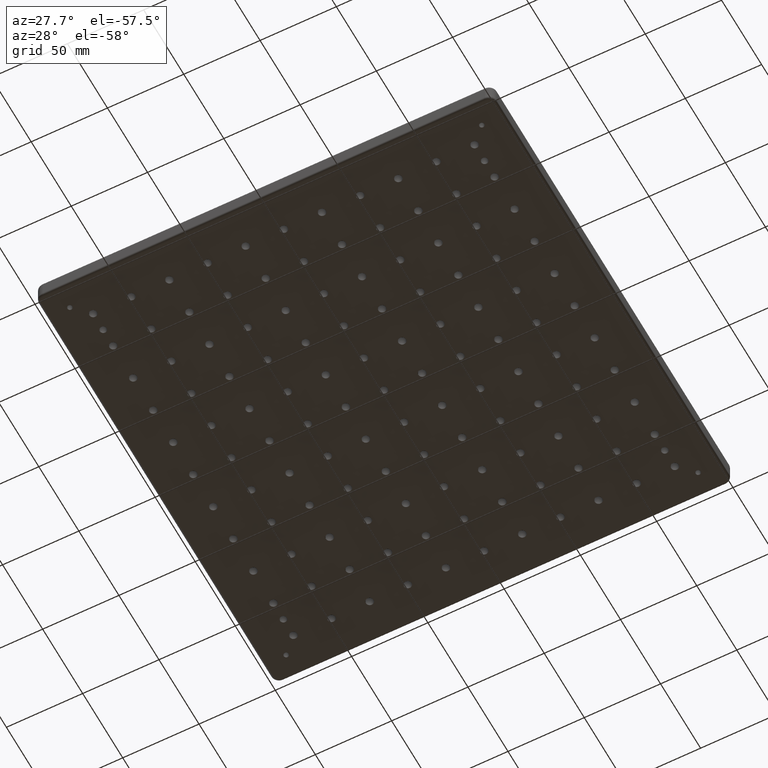
[diagram: clean part render]
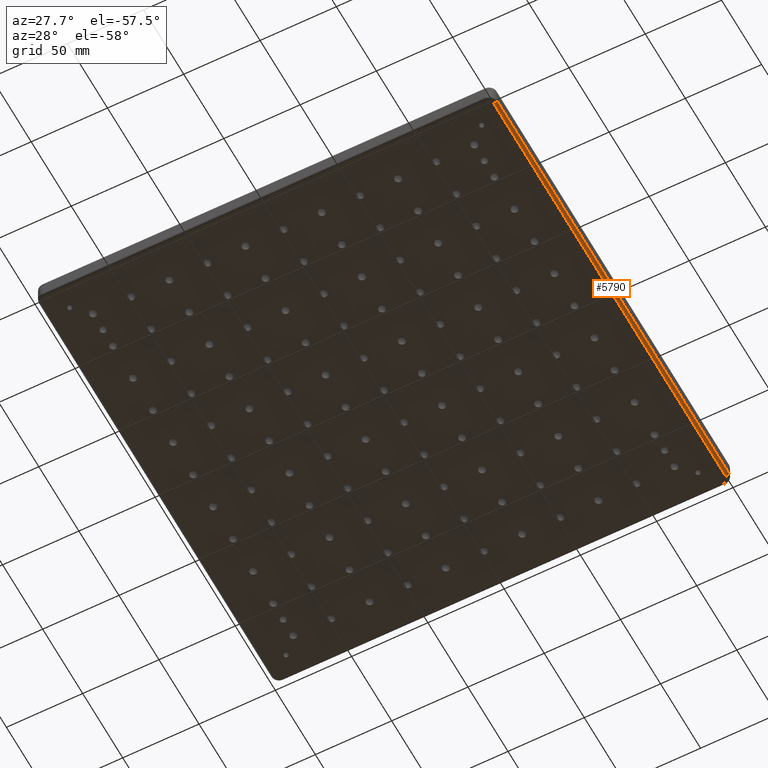
[diagram: same view with one face highlighted and labeled with its STEP entity id]
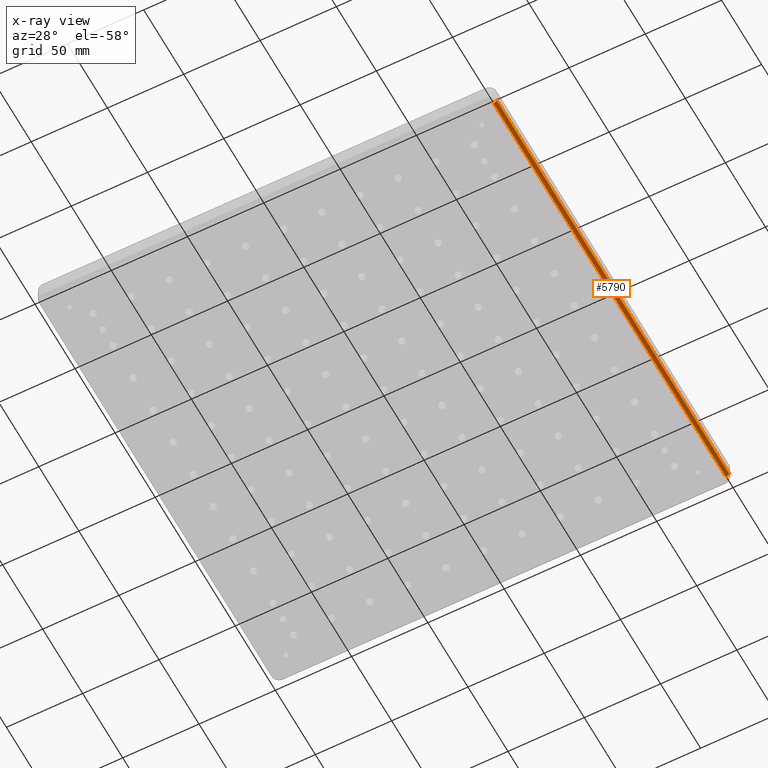
[diagram: x-ray of the same camera — body ghosted, the highlighted face saturated]
A machine part, auxiliary view. The second image highlights one B-rep face of the part: STEP entity #5790.
The next image is the same camera in x-ray: the body ghosted, the highlighted face saturated — about 0% of this face is hidden behind the body in this view.
In plain terms, the highlighted cylindrical surface (edge-blend (fillet) strip) has radius 2 mm, axis along (-0, 1, 0).
Its self-contained STEP definition (entity closure, byte-faithful):
#130 = CARTESIAN_POINT ( 'NONE',  ( 299.9999999999999400, 4.999999999999999100, -11.00000000000000000 ) ) ;
#289 = CARTESIAN_POINT ( 'NONE',  ( 299.9999999999999400, 0.0000000000000000000, -11.00000000000000000 ) ) ;
#821 = DIRECTION ( 'NONE',  ( -0.0000000000000000000, 1.000000000000000000, 0.0000000000000000000 ) ) ;
#1484 = CARTESIAN_POINT ( 'NONE',  ( 297.9999999999999400, 294.9999999999999400, -13.00000000000000000 ) ) ;
#1706 = VERTEX_POINT ( 'NONE', #130 ) ;
#1895 = AXIS2_PLACEMENT_3D ( 'NONE', #6524, #821, #4084 ) ;
#2279 = ORIENTED_EDGE ( 'NONE', *, *, #6926, .T. ) ;
#2374 = DIRECTION ( 'NONE',  ( -0.0000000000000000000, 1.000000000000000000, 0.0000000000000000000 ) ) ;
#2472 = FACE_OUTER_BOUND ( 'NONE', #6696, .T. ) ;
#3199 = DIRECTION ( 'NONE',  ( 0.0000000000000000000, 0.0000000000000000000, 1.000000000000000000 ) ) ;
#3693 = CIRCLE ( 'NONE', #8011, 2.000000000000000000 ) ;
#3784 = ORIENTED_EDGE ( 'NONE', *, *, #8711, .F. ) ;
#4084 = DIRECTION ( 'NONE',  ( 0.0000000000000000000, 0.0000000000000000000, 1.000000000000000000 ) ) ;
#4260 = CARTESIAN_POINT ( 'NONE',  ( 297.9999999999998900, 4.999999999999999100, -13.00000000000000000 ) ) ;
#4766 = CIRCLE ( 'NONE', #6035, 2.000000000000000000 ) ;
#5009 = CARTESIAN_POINT ( 'NONE',  ( 297.9999999999999400, 294.9999999999999400, -11.00000000000000000 ) ) ;
#5169 = LINE ( 'NONE', #9300, #7602 ) ;
#5256 = VERTEX_POINT ( 'NONE', #4260 ) ;
#5433 = CYLINDRICAL_SURFACE ( 'NONE', #1895, 2.000000000000000000 ) ;
#5790 = ADVANCED_FACE ( 'NONE', ( #2472 ), #5433, .T. ) ;
#5797 = DIRECTION ( 'NONE',  ( 0.0000000000000000000, 0.0000000000000000000, 1.000000000000000000 ) ) ;
#5940 = ORIENTED_EDGE ( 'NONE', *, *, #9675, .F. ) ;
#6035 = AXIS2_PLACEMENT_3D ( 'NONE', #7212, #2374, #3199 ) ;
#6486 = VERTEX_POINT ( 'NONE', #1484 ) ;
#6524 = CARTESIAN_POINT ( 'NONE',  ( 297.9999999999999400, 0.0000000000000000000, -11.00000000000000000 ) ) ;
#6596 = VECTOR ( 'NONE', #6816, 1000.000000000000000 ) ;
#6662 = ORIENTED_EDGE ( 'NONE', *, *, #10458, .F. ) ;
#6696 = EDGE_LOOP ( 'NONE', ( #2279, #6662, #5940, #3784 ) ) ;
#6816 = DIRECTION ( 'NONE',  ( -0.0000000000000000000, 1.000000000000000000, 0.0000000000000000000 ) ) ;
#6926 = EDGE_CURVE ( 'NONE', #1706, #5256, #4766, .T. ) ;
#7212 = CARTESIAN_POINT ( 'NONE',  ( 297.9999999999998900, 4.999999999999999100, -11.00000000000000000 ) ) ;
#7579 = CARTESIAN_POINT ( 'NONE',  ( 299.9999999999999400, 294.9999999999999400, -11.00000000000000000 ) ) ;
#7602 = VECTOR ( 'NONE', #8455, 1000.000000000000000 ) ;
#7859 = VERTEX_POINT ( 'NONE', #7579 ) ;
#8011 = AXIS2_PLACEMENT_3D ( 'NONE', #5009, #9052, #5797 ) ;
#8455 = DIRECTION ( 'NONE',  ( -0.0000000000000000000, -1.000000000000000000, -0.0000000000000000000 ) ) ;
#8711 = EDGE_CURVE ( 'NONE', #1706, #7859, #9421, .T. ) ;
#9052 = DIRECTION ( 'NONE',  ( -0.0000000000000000000, 1.000000000000000000, 0.0000000000000000000 ) ) ;
#9300 = CARTESIAN_POINT ( 'NONE',  ( 297.9999999999999400, 300.0000000000000000, -13.00000000000000000 ) ) ;
#9421 = LINE ( 'NONE', #289, #6596 ) ;
#9675 = EDGE_CURVE ( 'NONE', #7859, #6486, #3693, .T. ) ;
#10458 = EDGE_CURVE ( 'NONE', #6486, #5256, #5169, .T. ) ;